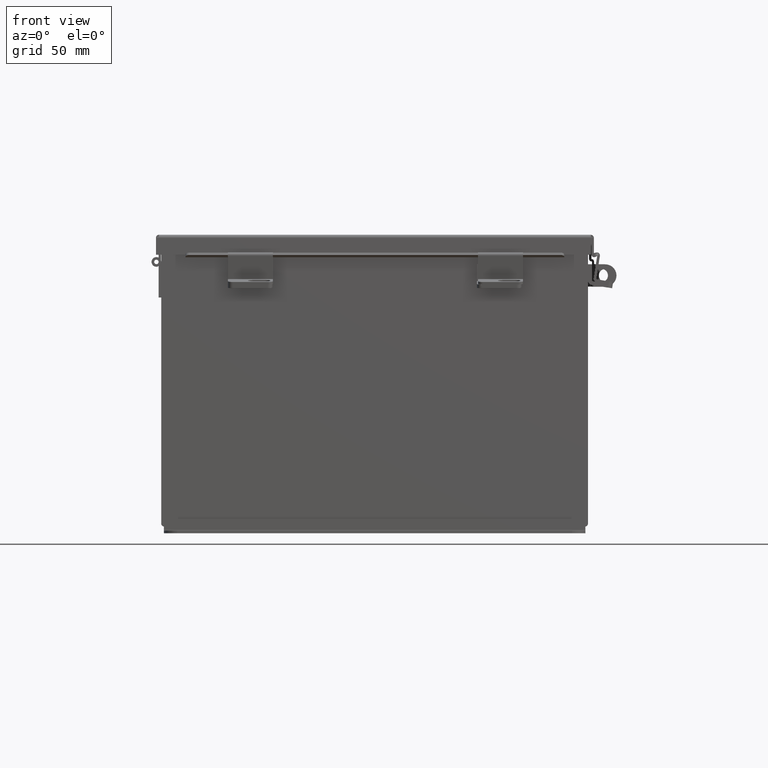
[diagram: clean part render]
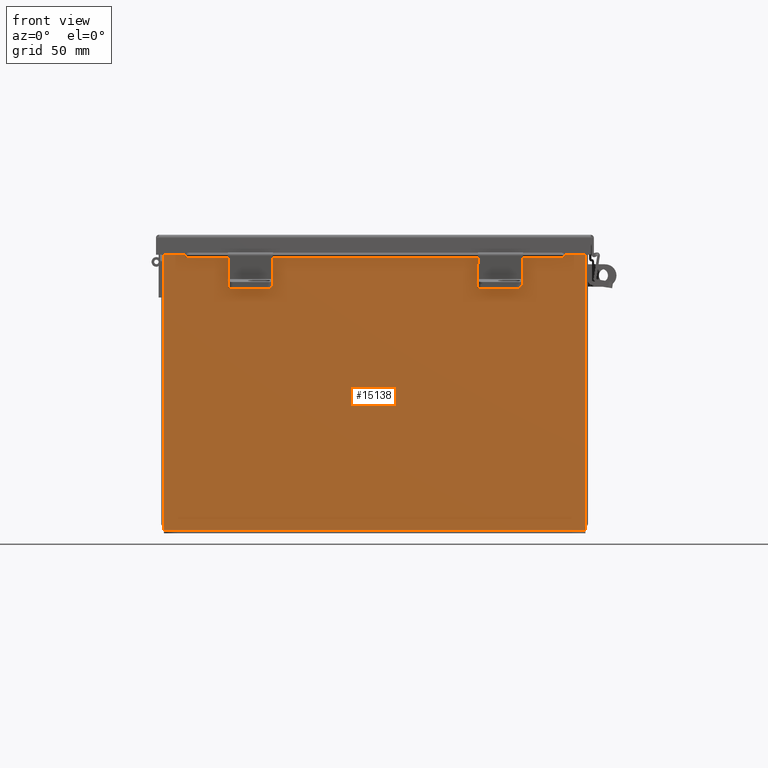
[diagram: same view with one face highlighted and labeled with its STEP entity id]
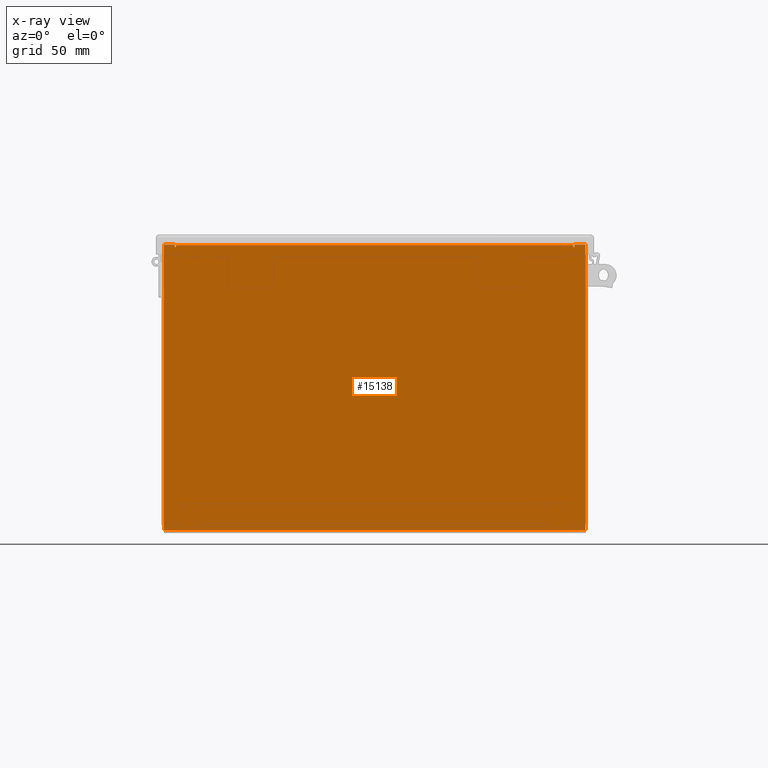
[diagram: x-ray of the same camera — body ghosted, the highlighted face saturated]
A machine part, front view. The second image highlights one B-rep face of the part: STEP entity #15138.
The next image is the same camera in x-ray: the body ghosted, the highlighted face saturated — about 0% of this face is hidden behind the body in this view.
In plain terms, the highlighted planar face has unit normal (-0, 1, -0).
Its self-contained STEP definition (entity closure, byte-faithful):
#243 = VERTEX_POINT ( 'NONE', #8144 ) ;
#332 = CARTESIAN_POINT ( 'NONE',  ( -5.925300000000001800, 0.0000000000000000000, 3.925300000000000500 ) ) ;
#402 = VERTEX_POINT ( 'NONE', #7906 ) ;
#824 = ORIENTED_EDGE ( 'NONE', *, *, #14339, .F. ) ;
#870 = DIRECTION ( 'NONE',  ( 0.0000000000000000000, 0.0000000000000000000, -1.000000000000000000 ) ) ;
#1258 = AXIS2_PLACEMENT_3D ( 'NONE', #17354, #9085, #870 ) ;
#1410 = EDGE_CURVE ( 'NONE', #15303, #9716, #3599, .T. ) ;
#1690 = CARTESIAN_POINT ( 'NONE',  ( 5.582299999999999200, 0.0000000000000000000, 0.0000000000000000000 ) ) ;
#1723 = CARTESIAN_POINT ( 'NONE',  ( -5.582300000000000900, 2.185478394931410600E-015, 3.912299999999999200 ) ) ;
#1754 = VERTEX_POINT ( 'NONE', #11055 ) ;
#1786 = CIRCLE ( 'NONE', #1258, 0.01867500000000003900 ) ;
#2061 = DIRECTION ( 'NONE',  ( -4.910036603141682400E-031, -1.000000000000000000, -0.0000000000000000000 ) ) ;
#2144 = DIRECTION ( 'NONE',  ( 0.0000000000000000000, 0.0000000000000000000, 1.000000000000000000 ) ) ;
#2156 = ORIENTED_EDGE ( 'NONE', *, *, #14972, .T. ) ;
#2267 = VECTOR ( 'NONE', #11270, 39.37007874015748100 ) ;
#2466 = ORIENTED_EDGE ( 'NONE', *, *, #4214, .T. ) ;
#2786 = VERTEX_POINT ( 'NONE', #4886 ) ;
#3095 = AXIS2_PLACEMENT_3D ( 'NONE', #11615, #3396, #12999 ) ;
#3115 = CARTESIAN_POINT ( 'NONE',  ( 5.619649999999914800, 0.0000000000000000000, -1.262113773072889600E-013 ) ) ;
#3119 = ORIENTED_EDGE ( 'NONE', *, *, #8864, .F. ) ;
#3396 = DIRECTION ( 'NONE',  ( 4.910036603141682400E-031, 1.000000000000000000, -0.0000000000000000000 ) ) ;
#3509 = CARTESIAN_POINT ( 'NONE',  ( -5.619650000000000000, 0.0000000000000000000, 3.925299999999999100 ) ) ;
#3556 = DIRECTION ( 'NONE',  ( 0.0000000000000000000, 0.0000000000000000000, -1.000000000000000000 ) ) ;
#3599 = LINE ( 'NONE', #332, #14138 ) ;
#3682 = VECTOR ( 'NONE', #5423, 39.37007874015748100 ) ;
#3707 = LINE ( 'NONE', #8021, #17305 ) ;
#3908 = VECTOR ( 'NONE', #3556, 39.37007874015748100 ) ;
#4191 = EDGE_CURVE ( 'NONE', #2786, #243, #15093, .T. ) ;
#4214 = EDGE_CURVE ( 'NONE', #17266, #13551, #11844, .T. ) ;
#4220 = EDGE_CURVE ( 'NONE', #402, #13551, #14231, .T. ) ;
#4327 = VERTEX_POINT ( 'NONE', #13854 ) ;
#4333 = LINE ( 'NONE', #9023, #3908 ) ;
#4426 = DIRECTION ( 'NONE',  ( 1.000000000000000000, 4.910036603141682400E-031, 0.0000000000000000000 ) ) ;
#4464 = CARTESIAN_POINT ( 'NONE',  ( -5.582300000000000000, 2.185478394931410600E-015, 3.912299999999999200 ) ) ;
#4510 = ORIENTED_EDGE ( 'NONE', *, *, #14661, .T. ) ;
#4886 = CARTESIAN_POINT ( 'NONE',  ( -5.925300000000000000, 0.0000000000000000000, -4.099299999999999500 ) ) ;
#5108 = ORIENTED_EDGE ( 'NONE', *, *, #8975, .F. ) ;
#5287 = LINE ( 'NONE', #1723, #16729 ) ;
#5423 = DIRECTION ( 'NONE',  ( 1.000000000000000000, 4.910036603141682400E-031, 0.0000000000000000000 ) ) ;
#5563 = ORIENTED_EDGE ( 'NONE', *, *, #4191, .F. ) ;
#5787 = AXIS2_PLACEMENT_3D ( 'NONE', #10281, #2061, #11664 ) ;
#5884 = CARTESIAN_POINT ( 'NONE',  ( 5.582299999999999200, 8.741913579725642300E-015, 3.874949999999999200 ) ) ;
#6418 = ORIENTED_EDGE ( 'NONE', *, *, #10664, .F. ) ;
#6902 = CARTESIAN_POINT ( 'NONE',  ( 5.619650000000000000, 8.741913579725642300E-015, 3.925300000000000500 ) ) ;
#7010 = VECTOR ( 'NONE', #11316, 39.37007874015748100 ) ;
#7013 = VERTEX_POINT ( 'NONE', #5884 ) ;
#7778 = VECTOR ( 'NONE', #2144, 39.37007874015748100 ) ;
#7906 = CARTESIAN_POINT ( 'NONE',  ( -5.619650000000000000, 0.0000000000000000000, 3.874949999999997900 ) ) ;
#7919 = EDGE_LOOP ( 'NONE', ( #8747, #3119, #6418, #2156, #824, #5108, #12051, #8263, #4510, #5563, #14526, #2466 ) ) ;
#8021 = CARTESIAN_POINT ( 'NONE',  ( -5.925300000000001800, 0.0000000000000000000, 3.925300000000000500 ) ) ;
#8144 = CARTESIAN_POINT ( 'NONE',  ( 5.925299999999999100, 8.741913579725642300E-015, -4.099300000000003900 ) ) ;
#8263 = ORIENTED_EDGE ( 'NONE', *, *, #1410, .T. ) ;
#8747 = ORIENTED_EDGE ( 'NONE', *, *, #4220, .F. ) ;
#8861 = DIRECTION ( 'NONE',  ( 1.000000000000000000, 4.910036603141682400E-031, -0.0000000000000000000 ) ) ;
#8864 = EDGE_CURVE ( 'NONE', #14201, #402, #9924, .T. ) ;
#8975 = EDGE_CURVE ( 'NONE', #4327, #7013, #1786, .T. ) ;
#9023 = CARTESIAN_POINT ( 'NONE',  ( -5.582300000000000000, 0.0000000000000000000, 0.0000000000000000000 ) ) ;
#9085 = DIRECTION ( 'NONE',  ( 4.910036603141682400E-031, 1.000000000000000000, -0.0000000000000000000 ) ) ;
#9127 = EDGE_CURVE ( 'NONE', #2786, #17266, #3707, .T. ) ;
#9530 = CARTESIAN_POINT ( 'NONE',  ( -5.582300000000000000, 0.0000000000000000000, 3.874949999999997900 ) ) ;
#9552 = LINE ( 'NONE', #1690, #2267 ) ;
#9716 = VERTEX_POINT ( 'NONE', #13756 ) ;
#9923 = DIRECTION ( 'NONE',  ( 1.000000000000000000, 4.910036603141682400E-031, -0.0000000000000000000 ) ) ;
#9924 = CIRCLE ( 'NONE', #3095, 0.01867500000000003900 ) ;
#10013 = FACE_OUTER_BOUND ( 'NONE', #7919, .T. ) ;
#10183 = CARTESIAN_POINT ( 'NONE',  ( -5.925300000000001800, 0.0000000000000000000, -4.099299999999999500 ) ) ;
#10281 = CARTESIAN_POINT ( 'NONE',  ( 0.0000000000000000000, 0.0000000000000000000, 0.0000000000000000000 ) ) ;
#10557 = CARTESIAN_POINT ( 'NONE',  ( 5.925299999999999100, 8.741913579725642300E-015, 3.925299999999999100 ) ) ;
#10664 = EDGE_CURVE ( 'NONE', #14991, #14201, #4333, .T. ) ;
#10767 = DIRECTION ( 'NONE',  ( 0.0000000000000000000, 0.0000000000000000000, 1.000000000000000000 ) ) ;
#11055 = CARTESIAN_POINT ( 'NONE',  ( 5.582299999999999200, 8.741913579725642300E-015, 3.912299999999997900 ) ) ;
#11270 = DIRECTION ( 'NONE',  ( 0.0000000000000000000, 0.0000000000000000000, 1.000000000000000000 ) ) ;
#11316 = DIRECTION ( 'NONE',  ( -2.170286390199955400E-014, -7.888609052210118100E-031, -1.000000000000000000 ) ) ;
#11408 = VECTOR ( 'NONE', #8861, 39.37007874015748100 ) ;
#11615 = CARTESIAN_POINT ( 'NONE',  ( -5.600975000000000000, 0.0000000000000000000, 3.874949999999997900 ) ) ;
#11664 = DIRECTION ( 'NONE',  ( 0.0000000000000000000, 0.0000000000000000000, -1.000000000000000000 ) ) ;
#11844 = LINE ( 'NONE', #16214, #3682 ) ;
#11931 = DIRECTION ( 'NONE',  ( 0.0000000000000000000, 0.0000000000000000000, -1.000000000000000000 ) ) ;
#12051 = ORIENTED_EDGE ( 'NONE', *, *, #15820, .F. ) ;
#12999 = DIRECTION ( 'NONE',  ( 0.0000000000000000000, 0.0000000000000000000, -1.000000000000000000 ) ) ;
#13289 = VECTOR ( 'NONE', #11931, 39.37007874015748100 ) ;
#13551 = VERTEX_POINT ( 'NONE', #3509 ) ;
#13756 = CARTESIAN_POINT ( 'NONE',  ( 5.925299999999999100, 8.741913579725642300E-015, 3.925299999999999100 ) ) ;
#13854 = CARTESIAN_POINT ( 'NONE',  ( 5.619649999999998300, 8.741913579725642300E-015, 3.874949999999999200 ) ) ;
#14138 = VECTOR ( 'NONE', #4426, 39.37007874015748100 ) ;
#14201 = VERTEX_POINT ( 'NONE', #9530 ) ;
#14231 = LINE ( 'NONE', #15178, #7778 ) ;
#14339 = EDGE_CURVE ( 'NONE', #7013, #1754, #9552, .T. ) ;
#14526 = ORIENTED_EDGE ( 'NONE', *, *, #9127, .T. ) ;
#14661 = EDGE_CURVE ( 'NONE', #9716, #243, #17387, .T. ) ;
#14972 = EDGE_CURVE ( 'NONE', #14991, #1754, #5287, .T. ) ;
#14991 = VERTEX_POINT ( 'NONE', #4464 ) ;
#15093 = LINE ( 'NONE', #10183, #11408 ) ;
#15138 = ADVANCED_FACE ( 'NONE', ( #10013 ), #15764, .F. ) ;
#15178 = CARTESIAN_POINT ( 'NONE',  ( -5.619650000000000000, 0.0000000000000000000, 0.0000000000000000000 ) ) ;
#15303 = VERTEX_POINT ( 'NONE', #6902 ) ;
#15627 = CARTESIAN_POINT ( 'NONE',  ( -5.925300000000001800, 0.0000000000000000000, 3.925300000000000500 ) ) ;
#15764 = PLANE ( 'NONE',  #5787 ) ;
#15820 = EDGE_CURVE ( 'NONE', #15303, #4327, #17557, .T. ) ;
#16214 = CARTESIAN_POINT ( 'NONE',  ( -5.925300000000001800, 0.0000000000000000000, 3.925300000000000500 ) ) ;
#16729 = VECTOR ( 'NONE', #9923, 39.37007874015748100 ) ;
#17266 = VERTEX_POINT ( 'NONE', #15627 ) ;
#17305 = VECTOR ( 'NONE', #10767, 39.37007874015748100 ) ;
#17354 = CARTESIAN_POINT ( 'NONE',  ( 5.600974999999998300, 8.741913579725642300E-015, 3.874949999999999200 ) ) ;
#17387 = LINE ( 'NONE', #10557, #13289 ) ;
#17557 = LINE ( 'NONE', #3115, #7010 ) ;